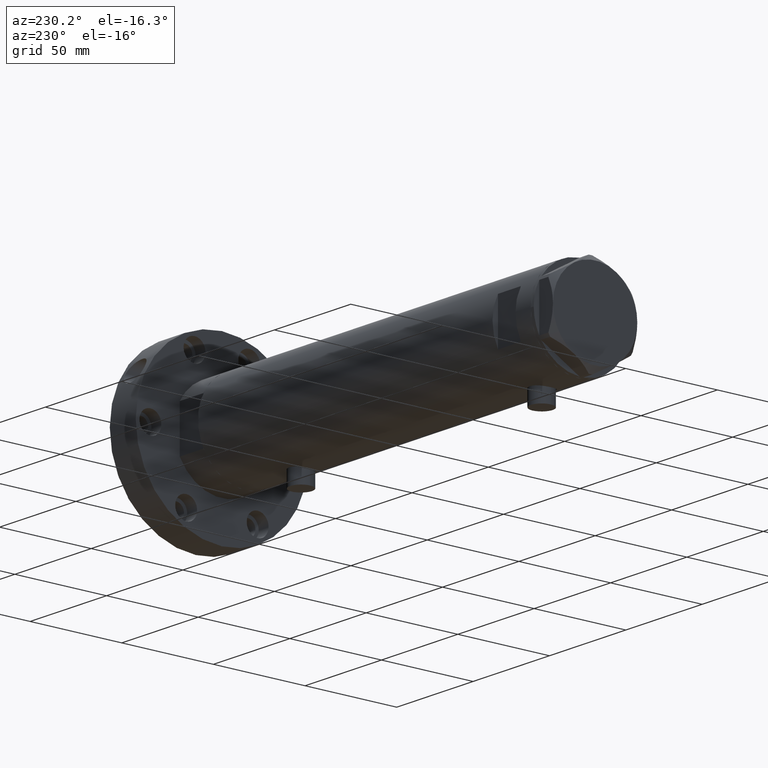
[diagram: clean part render]
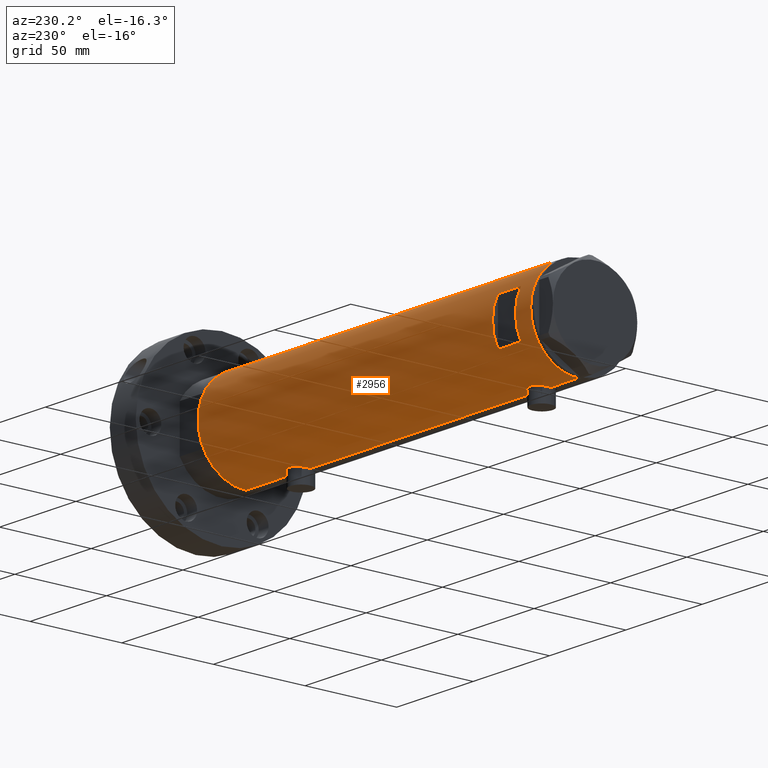
[diagram: same view with one face highlighted and labeled with its STEP entity id]
A machine part, auxiliary view. The second image highlights one B-rep face of the part: STEP entity #2956.
In plain terms, the highlighted cylindrical surface (partial cylindrical patch) has radius 26 mm, axis along (-1, -0, 0).
Its self-contained STEP definition (entity closure, byte-faithful):
#16 = CARTESIAN_POINT ( 'NONE',  ( 26.00000000000000355, 0.4983968644076023913, -77.25000000000000000 ) ) ;
#27 = ORIENTED_EDGE ( 'NONE', *, *, #5753, .T. ) ;
#31 = CARTESIAN_POINT ( 'NONE',  ( -25.92432690655987315, 2.018143994254077978, 79.02070577177285315 ) ) ;
#37 = AXIS2_PLACEMENT_3D ( 'NONE', #3273, #5276, #395 ) ;
#62 = CARTESIAN_POINT ( 'NONE',  ( -25.38675822915647728, 5.615881323213574028, 87.72306781662007324 ) ) ;
#111 = CARTESIAN_POINT ( 'NONE',  ( 24.90976107960112529, 7.450765568638834324, -68.76117130648536602 ) ) ;
#122 = DIRECTION ( 'NONE',  ( 0.000000000000000000, 0.000000000000000000, 1.000000000000000000 ) ) ;
#151 = CARTESIAN_POINT ( 'NONE',  ( -25.24766879991037172, 6.209837761082654062, 85.76849569029695886 ) ) ;
#203 = CARTESIAN_POINT ( 'NONE',  ( 0.000000000000000000, 0.000000000000000000, -108.9500000000000028 ) ) ;
#252 = CARTESIAN_POINT ( 'NONE',  ( 25.41763780493359803, 5.474943943663465262, 94.58176313788933953 ) ) ;
#279 = CARTESIAN_POINT ( 'NONE',  ( 25.31017500740585291, 5.951503630041879767, 94.02049592637402498 ) ) ;
#313 = CARTESIAN_POINT ( 'NONE',  ( -25.52275868012767646, 4.960454986366444885, -76.45761629406632665 ) ) ;
#319 = CARTESIAN_POINT ( 'NONE',  ( 26.00000000000000355, 1.142179864233347086E-15, 81.94999999999998863 ) ) ;
#345 = CARTESIAN_POINT ( 'NONE',  ( -25.45277932469920756, 5.307477387851102790, -75.95672800165310434 ) ) ;
#352 = CARTESIAN_POINT ( 'NONE',  ( 25.11254978876589661, 6.737777305585169962, 86.11974648253587361 ) ) ;
#387 = CARTESIAN_POINT ( 'NONE',  ( -25.90661719257679607, 2.209805098346973029, 90.79988745781523107 ) ) ;
#395 = DIRECTION ( 'NONE',  ( 1.000000000000000000, 0.000000000000000000, 0.000000000000000000 ) ) ;
#424 = CARTESIAN_POINT ( 'NONE',  ( 26.00000000000000355, -3.975030973907779525E-20, 96.95000000000000284 ) ) ;
#451 = CARTESIAN_POINT ( 'NONE',  ( 0.000000000000000000, 0.000000000000000000, 83.95000000000011653 ) ) ;
#452 = CARTESIAN_POINT ( 'NONE',  ( -26.00000000000000355, 3.184081677783118585E-15, -108.9500000000000028 ) ) ;
#485 = CARTESIAN_POINT ( 'NONE',  ( 25.93077501166307641, 1.957027822413552220, -62.49302141437592439 ) ) ;
#520 = CARTESIAN_POINT ( 'NONE',  ( 26.00000000000000355, 3.155021778966484351E-16, -77.25000000000001421 ) ) ;
#548 = CARTESIAN_POINT ( 'NONE',  ( 25.01140519645288407, 7.101774040639634578, -72.17392235700825154 ) ) ;
#560 = CARTESIAN_POINT ( 'NONE',  ( -25.33346170681504361, 5.849967696906721137, -70.44052947900497941 ) ) ;
#563 = CARTESIAN_POINT ( 'NONE',  ( -25.98057228346869607, 1.024901789261878138, 78.78119414145170651 ) ) ;
#626 = ORIENTED_EDGE ( 'NONE', *, *, #5326, .T. ) ;
#652 = CARTESIAN_POINT ( 'NONE',  ( 0.000000000000000000, 0.000000000000000000, 108.9500000000000028 ) ) ;
#690 = EDGE_LOOP ( 'NONE', ( #1686, #27, #6451, #626, #3200, #3333, #832, #1265, #3426, #1356, #1170, #5843 ) ) ;
#702 = CARTESIAN_POINT ( 'NONE',  ( 26.00000000000001066, 0.2455784580650491045, -62.25000000000000000 ) ) ;
#754 = CARTESIAN_POINT ( 'NONE',  ( 24.90951684770588059, 7.451587374037549338, 88.46604395478804861 ) ) ;
#776 = ORIENTED_EDGE ( 'NONE', *, *, #1470, .F. ) ;
#814 = CARTESIAN_POINT ( 'NONE',  ( -25.23757896588369931, 6.250168635417630014, -73.05675308410499724 ) ) ;
#819 = CARTESIAN_POINT ( 'NONE',  ( 25.97197502027376714, 1.230965554787594840, 96.85240824498376355 ) ) ;
#832 = ORIENTED_EDGE ( 'NONE', *, *, #4372, .F. ) ;
#855 = CARTESIAN_POINT ( 'NONE',  ( 25.03487248886523275, 7.018875226450804306, 86.79576782607934149 ) ) ;
#878 = LINE ( 'NONE', #4002, #4936 ) ;
#889 = CARTESIAN_POINT ( 'NONE',  ( 25.11550258961939619, 6.725017566862045548, 92.77928477806018748 ) ) ;
#908 = CARTESIAN_POINT ( 'NONE',  ( 26.00000000000000355, 0.000000000000000000, -108.9500000000000028 ) ) ;
#912 = CARTESIAN_POINT ( 'NONE',  ( -25.49884629689153215, 5.081547904122039938, -76.29439805696090104 ) ) ;
#1011 = CARTESIAN_POINT ( 'NONE',  ( -25.67095236150574067, 4.133649689219787149, -67.94464771725739638 ) ) ;
#1040 = CARTESIAN_POINT ( 'NONE',  ( 25.38132706741445688, 5.649034551923791447, -74.70731952814048782 ) ) ;
#1042 = CARTESIAN_POINT ( 'NONE',  ( 26.00000000000000355, 1.142179864233347086E-15, 81.94999999999998863 ) ) ;
#1049 = VECTOR ( 'NONE', #5779, 1000.000000000000000 ) ;
#1076 = CARTESIAN_POINT ( 'NONE',  ( -26.00000000000000355, 3.184081677783118585E-15, -108.9500000000000028 ) ) ;
#1106 = CARTESIAN_POINT ( 'NONE',  ( 25.30960479024496834, 5.958491152160531712, -74.33139677679966439 ) ) ;
#1122 = CARTESIAN_POINT ( 'NONE',  ( -26.00000000000000355, 1.227111019500118713E-15, 91.20000000000000284 ) ) ;
#1161 = VERTEX_POINT ( 'NONE', #1042 ) ;
#1170 = ORIENTED_EDGE ( 'NONE', *, *, #2804, .F. ) ;
#1192 = CIRCLE ( 'NONE', #37, 26.00000000000000355 ) ;
#1211 = CARTESIAN_POINT ( 'NONE',  ( 12.12435565298213724, 23.00000000000000355, 83.95000000000003126 ) ) ;
#1265 = ORIENTED_EDGE ( 'NONE', *, *, #2619, .F. ) ;
#1283 = CARTESIAN_POINT ( 'NONE',  ( 25.99652140603930306, 0.4914164889130540614, 96.93796820480460497 ) ) ;
#1332 = CARTESIAN_POINT ( 'NONE',  ( 26.00000000000000355, 0.000000000000000000, -108.9500000000000028 ) ) ;
#1351 = CARTESIAN_POINT ( 'NONE',  ( 24.95233689475078975, 7.306396477445192161, 87.73896186853338008 ) ) ;
#1356 = ORIENTED_EDGE ( 'NONE', *, *, #4396, .F. ) ;
#1381 = CARTESIAN_POINT ( 'NONE',  ( -26.00000000000000355, 1.227111019500118713E-15, -66.40000000000000568 ) ) ;
#1382 = CARTESIAN_POINT ( 'NONE',  ( 26.00000000000000000, 0.4983968644076025023, 81.95000000000000284 ) ) ;
#1386 = CARTESIAN_POINT ( 'NONE',  ( -25.99009688862344092, 0.8219492608955324409, 91.15915939226573528 ) ) ;
#1422 = CARTESIAN_POINT ( 'NONE',  ( -25.52242378584899640, 4.965907353613394193, 88.76719602921738783 ) ) ;
#1439 = EDGE_CURVE ( 'NONE', #3480, #4966, #5121, .T. ) ;
#1440 = CARTESIAN_POINT ( 'NONE',  ( -25.38875076695533650, 5.605452563035129288, -75.42185900824102873 ) ) ;
#1462 = AXIS2_PLACEMENT_3D ( 'NONE', #451, #1845, #3805 ) ;
#1470 = EDGE_CURVE ( 'NONE', #1955, #1557, #5956, .T. ) ;
#1537 = CARTESIAN_POINT ( 'NONE',  ( 25.63006864069251378, 4.375159448492150105, -75.84654411758884862 ) ) ;
#1540 = CARTESIAN_POINT ( 'NONE',  ( -25.92257874449351718, 2.014648337067152184, -66.73003581636324100 ) ) ;
#1557 = VERTEX_POINT ( 'NONE', #2065 ) ;
#1572 = CARTESIAN_POINT ( 'NONE',  ( 25.89067367629246164, 2.424883365422559223, -62.63594795494831402 ) ) ;
#1584 = CARTESIAN_POINT ( 'NONE',  ( -25.36894112891957320, 5.694149517195235433, 82.36517494801691441 ) ) ;
#1587 = CARTESIAN_POINT ( 'NONE',  ( 26.00000000000000355, 0.000000000000000000, -108.9500000000000028 ) ) ;
#1601 = CARTESIAN_POINT ( 'NONE',  ( 25.11550258961939264, 6.725017566862044660, -66.42071522193982958 ) ) ;
#1614 = CARTESIAN_POINT ( 'NONE',  ( -25.67176285215957776, 4.128807479817784731, 80.24008401548879021 ) ) ;
#1632 = CARTESIAN_POINT ( 'NONE',  ( 24.89471231507667071, 7.500219916954801391, -69.26121773116975078 ) ) ;
#1686 = ORIENTED_EDGE ( 'NONE', *, *, #5888, .T. ) ;
#1745 = CARTESIAN_POINT ( 'NONE',  ( 25.93077501166307997, 1.957027822413550000, 96.70697858562412819 ) ) ;
#1775 = CARTESIAN_POINT ( 'NONE',  ( 25.27545867390324474, 6.096774941222101951, 93.82477406957971766 ) ) ;
#1816 = LINE ( 'NONE', #5714, #1049 ) ;
#1845 = DIRECTION ( 'NONE',  ( 0.000000000000000000, 4.625929269271486900E-15, 1.000000000000000000 ) ) ;
#1850 = CARTESIAN_POINT ( 'NONE',  ( 25.92799636947105668, 1.948138538329400093, 82.20322312211784777 ) ) ;
#1878 = CARTESIAN_POINT ( 'NONE',  ( -25.98789693408478740, 0.8193301824842001979, -78.84948980265349405 ) ) ;
#1887 = CARTESIAN_POINT ( 'NONE',  ( 24.96662810169870284, 7.257932614256881187, 91.40297309526737024 ) ) ;
#1909 = CARTESIAN_POINT ( 'NONE',  ( -25.95208098418916975, 1.628413954368976846, -78.69806792170716392 ) ) ;
#1919 = CARTESIAN_POINT ( 'NONE',  ( -25.72105193281917579, 3.813738527046907745, 89.91833691099431292 ) ) ;
#1955 = VERTEX_POINT ( 'NONE', #1211 ) ;
#1989 = EDGE_CURVE ( 'NONE', #5688, #2477, #3013, .T. ) ;
#1997 = CARTESIAN_POINT ( 'NONE',  ( 25.88814720404043968, 2.420758939209245231, -76.85288286828455284 ) ) ;
#2002 = ORIENTED_EDGE ( 'NONE', *, *, #3633, .F. ) ;
#2004 = CARTESIAN_POINT ( 'NONE',  ( -25.99009688862344092, 0.8219492608955326629, -66.44084060773425904 ) ) ;
#2028 = CARTESIAN_POINT ( 'NONE',  ( 25.48882460966381203, 5.133289275481222269, -75.22343523597911030 ) ) ;
#2032 = VECTOR ( 'NONE', #3629, 1000.000000000000000 ) ;
#2034 = CARTESIAN_POINT ( 'NONE',  ( -26.00000000000001066, 0.4145874687851194285, -66.40000000000000568 ) ) ;
#2063 = CARTESIAN_POINT ( 'NONE',  ( 25.92799636947105313, 1.948138538329398539, -76.99677687788214087 ) ) ;
#2065 = CARTESIAN_POINT ( 'NONE',  ( -12.12435565298214080, 23.00000000000000355, 83.95000000000003126 ) ) ;
#2074 = CARTESIAN_POINT ( 'NONE',  ( -25.23757896588369576, 6.250168635417627350, 84.54324691589501128 ) ) ;
#2090 = CARTESIAN_POINT ( 'NONE',  ( 24.90951684770587704, 7.451587374037550227, -70.73395604521196844 ) ) ;
#2130 = CIRCLE ( 'NONE', #3657, 26.00000000000000355 ) ;
#2211 = DIRECTION ( 'NONE',  ( 1.000000000000000000, 0.000000000000000000, 0.000000000000000000 ) ) ;
#2220 = CARTESIAN_POINT ( 'NONE',  ( -26.00000000000000355, 3.184077527325983904E-15, -78.90000000000000568 ) ) ;
#2260 = CARTESIAN_POINT ( 'NONE',  ( 25.98255381630416849, 0.9836221648041321153, 96.88933098058195981 ) ) ;
#2322 = CARTESIAN_POINT ( 'NONE',  ( 25.78997056644825037, 3.329333406239041615, 96.18834808433848593 ) ) ;
#2353 = CARTESIAN_POINT ( 'NONE',  ( 25.86510134953875450, 2.654921787384018739, 82.43132938305093660 ) ) ;
#2372 = EDGE_CURVE ( 'NONE', #5688, #4213, #5926, .T. ) ;
#2374 = CARTESIAN_POINT ( 'NONE',  ( -25.85449082491265571, 2.772892880050684017, -78.26609297485326522 ) ) ;
#2378 = CARTESIAN_POINT ( 'NONE',  ( 0.000000000000000000, 0.000000000000000000, 98.95000000000001705 ) ) ;
#2379 = CARTESIAN_POINT ( 'NONE',  ( 24.89484527721567986, 7.499778575171907491, 88.95449194517063063 ) ) ;
#2384 = CARTESIAN_POINT ( 'NONE',  ( -25.85406084573621754, 2.777003695811651962, 90.56412841326093144 ) ) ;
#2404 = AXIS2_PLACEMENT_3D ( 'NONE', #2378, #3391, #2444 ) ;
#2444 = DIRECTION ( 'NONE',  ( 1.000000000000000000, -5.329070518200751394E-15, 0.000000000000000000 ) ) ;
#2464 = CARTESIAN_POINT ( 'NONE',  ( 12.12435565298214080, 23.00000000000000355, 98.95000000000001705 ) ) ;
#2469 = CARTESIAN_POINT ( 'NONE',  ( 25.97197502027376004, 1.230965554787593730, -62.34759175501625350 ) ) ;
#2477 = VERTEX_POINT ( 'NONE', #2715 ) ;
#2499 = CARTESIAN_POINT ( 'NONE',  ( 25.72923282622328500, 3.765147152416744802, -76.25485575784709624 ) ) ;
#2515 = CARTESIAN_POINT ( 'NONE',  ( -25.23766275406408965, 6.249830297096023557, 85.36191904555117560 ) ) ;
#2530 = CARTESIAN_POINT ( 'NONE',  ( 25.78922176490238627, 3.335318700939514436, -76.48550568766478364 ) ) ;
#2558 = CARTESIAN_POINT ( 'NONE',  ( 25.11254978876589306, 6.737777305585169074, -73.08025351746414344 ) ) ;
#2585 = CARTESIAN_POINT ( 'NONE',  ( 25.98569222077104257, 0.9879514382926418703, -77.20081846687564564 ) ) ;
#2597 = CARTESIAN_POINT ( 'NONE',  ( -25.45277932469920046, 5.307477387851101014, 81.64327199834687576 ) ) ;
#2619 = EDGE_CURVE ( 'NONE', #6406, #4860, #5451, .T. ) ;
#2659 = CARTESIAN_POINT ( 'NONE',  ( -25.27696731428695642, 6.089059008147561514, -71.22583693040516550 ) ) ;
#2715 = CARTESIAN_POINT ( 'NONE',  ( -26.00000000000000355, 3.184077527313362130E-15, 78.69999999999998863 ) ) ;
#2723 = CARTESIAN_POINT ( 'NONE',  ( 25.00820649268565532, 7.115348876445601434, 91.87184000475454582 ) ) ;
#2756 = EDGE_CURVE ( 'NONE', #1557, #4299, #3932, .T. ) ;
#2780 = CARTESIAN_POINT ( 'NONE',  ( -25.24784248027028966, 6.209126813737962713, -73.47268161688060673 ) ) ;
#2784 = CARTESIAN_POINT ( 'NONE',  ( 25.98569222077104968, 0.9879514382926425364, 81.99918153312438562 ) ) ;
#2804 = EDGE_CURVE ( 'NONE', #3295, #4081, #5749, .T. ) ;
#2816 = CARTESIAN_POINT ( 'NONE',  ( -25.28673619335057055, 6.048783215285170378, -74.27550990348181870 ) ) ;
#2821 = CARTESIAN_POINT ( 'NONE',  ( 25.99999999999999289, 0.2455784580650480498, 96.94999999999996021 ) ) ;
#2849 = CARTESIAN_POINT ( 'NONE',  ( -26.00000000000000355, 0.2043916521039003675, -78.90000000000000568 ) ) ;
#2856 = CARTESIAN_POINT ( 'NONE',  ( 25.17636585680005368, 6.493453152855889421, 93.21099249662803743 ) ) ;
#2878 = DIRECTION ( 'NONE',  ( 0.000000000000000000, 0.000000000000000000, 1.000000000000000000 ) ) ;
#2881 = CARTESIAN_POINT ( 'NONE',  ( -25.81206132723605862, 3.139065735901515275, -78.06978769360878800 ) ) ;
#2914 = CARTESIAN_POINT ( 'NONE',  ( -25.57167265924274702, 4.701795585128869526, -76.77276288310035568 ) ) ;
#2946 = CARTESIAN_POINT ( 'NONE',  ( 25.20855488770172315, 6.367749707222650990, -65.77997776959041687 ) ) ;
#2950 = CARTESIAN_POINT ( 'NONE',  ( -26.00000000000000355, 1.227111019500118713E-15, -66.40000000000000568 ) ) ;
#2956 = ADVANCED_FACE ( 'NONE', ( #5177, #4688 ), #6281, .T. ) ;
#2985 = CARTESIAN_POINT ( 'NONE',  ( -25.38675822915647728, 5.615881323213574028, -69.87693218337989265 ) ) ;
#3013 = B_SPLINE_CURVE_WITH_KNOTS ( 'NONE', 3,
 ( #6371, #3846, #1386, #3395, #3367, #4874, #387, #2384, #4387, #1919, #3883, #5906, #1422, #4136, #62, #4578, #6040, #5637, #5033, #151, #2515, #2074, #6069, #4076, #4109, #1584, #4042, #6100, #2597, #3580, #3606, #3550, #3033, #1614, #4609, #5122, #5606, #31, #3516, #563, #4515, #5568, #5095, #3124 ),
 .UNSPECIFIED., .F., .F.,
 ( 4, 2, 2, 2, 2, 2, 2, 2, 2, 2, 2, 2, 2, 2, 2, 2, 2, 2, 2, 2, 2, 4 ),
 ( 1.191872608207982896E-18, 0.001225774033668414415, 0.001838661050502624766, 0.002451548067336834901, 0.003677322101005254303, 0.004903096134673673272, 0.006128870168342093541, 0.007354644202010512943, 0.007967531218844704430, 0.008580418235678894182, 0.009806192269347313584, 0.01103196630301573472, 0.01225774033668415586, 0.01287062735351834561, 0.01348351437035253536, 0.01409640138718672858, 0.01470928840402092007, 0.01593506243768930131, 0.01716083647135768081, 0.01838661050502606725, 0.01899949752186025700, 0.01961238453869444676 ),
 .UNSPECIFIED. ) ;
#3017 = CARTESIAN_POINT ( 'NONE',  ( 25.08669247833291394, 6.831361936037332327, -66.64462260596206988 ) ) ;
#3020 = VECTOR ( 'NONE', #5080, 1000.000000000000000 ) ;
#3033 = CARTESIAN_POINT ( 'NONE',  ( -25.59680708126579773, 4.563450671387936808, 80.67456050020027192 ) ) ;
#3098 = DIRECTION ( 'NONE',  ( 0.000000000000000000, 0.000000000000000000, 1.000000000000000000 ) ) ;
#3121 = VECTOR ( 'NONE', #4378, 1000.000000000000000 ) ;
#3124 = CARTESIAN_POINT ( 'NONE',  ( -26.00000000000000355, 3.184077527313362130E-15, 78.69999999999998863 ) ) ;
#3200 = ORIENTED_EDGE ( 'NONE', *, *, #1989, .F. ) ;
#3222 = CARTESIAN_POINT ( 'NONE',  ( 25.63006864069250668, 4.375159448492152769, 83.35345588241116843 ) ) ;
#3258 = CARTESIAN_POINT ( 'NONE',  ( 24.90976107960112529, 7.450765568638835212, 90.43882869351465104 ) ) ;
#3273 = CARTESIAN_POINT ( 'NONE',  ( 0.000000000000000000, 0.000000000000000000, -108.9500000000000028 ) ) ;
#3291 = CARTESIAN_POINT ( 'NONE',  ( -25.36894112891956965, 5.694149517195237209, -75.23482505198309411 ) ) ;
#3295 = VERTEX_POINT ( 'NONE', #5482 ) ;
#3303 = VERTEX_POINT ( 'NONE', #2464 ) ;
#3329 = CARTESIAN_POINT ( 'NONE',  ( 25.38117076385347204, 5.641057083563605801, 94.39856579741848464 ) ) ;
#3333 = ORIENTED_EDGE ( 'NONE', *, *, #2372, .T. ) ;
#3362 = CARTESIAN_POINT ( 'NONE',  ( 24.89471231507666715, 7.500219916954801391, 89.93878226883029470 ) ) ;
#3367 = CARTESIAN_POINT ( 'NONE',  ( -25.95015815577422913, 1.621168830448742826, 90.98958570439819482 ) ) ;
#3369 = CARTESIAN_POINT ( 'NONE',  ( 26.00000000000000355, -3.975028449552882818E-20, -62.24999999999999289 ) ) ;
#3388 = CARTESIAN_POINT ( 'NONE',  ( -25.67176285215958487, 4.128807479817783843, -77.35991598451124673 ) ) ;
#3391 = DIRECTION ( 'NONE',  ( -0.000000000000000000, -0.000000000000000000, -1.000000000000000000 ) ) ;
#3395 = CARTESIAN_POINT ( 'NONE',  ( -25.96182217530153480, 1.422664245316465959, 91.03935273092393743 ) ) ;
#3411 = CARTESIAN_POINT ( 'NONE',  ( -25.92432690655987670, 2.018143994254067319, -78.57929422822714116 ) ) ;
#3426 = ORIENTED_EDGE ( 'NONE', *, *, #4456, .F. ) ;
#3439 = EDGE_CURVE ( 'NONE', #4299, #3303, #6294, .T. ) ;
#3449 = B_SPLINE_CURVE_WITH_KNOTS ( 'NONE', 3,
 ( #319, #1382, #2784, #5735, #1850, #4315, #2353, #4236, #4775, #3222, #5226, #5289, #4355, #3739, #5359, #3811, #352, #855, #4742, #6259, #1351, #754, #2379, #3362, #3258, #1887, #2723, #3773, #889, #2856, #5805, #1775, #279, #3329, #252, #5775, #4275, #6366, #2322, #5323, #1745, #819, #2260, #1283, #2821, #4869 ),
 .UNSPECIFIED., .F., .F.,
 ( 4, 2, 2, 2, 2, 2, 2, 2, 2, 2, 2, 2, 2, 2, 2, 2, 2, 2, 2, 2, 2, 2, 4 ),
 ( 1.109123384753006195E-18, 0.001473395154583141816, 0.002210092731874708279, 0.002946790309166274525, 0.004420185463749423498, 0.005156883041040996249, 0.005893580618332569000, 0.007366975772915686747, 0.008840370927498805362, 0.009577068504790344286, 0.01031376608208188494, 0.01178716123666492463, 0.01326055639124796431, 0.01473395154583100573, 0.01547064912312250649, 0.01620734670041400205, 0.01694404427770550628, 0.01768074185499700357, 0.01915413700957997734, 0.02062753216416295110, 0.02210092731874592140, 0.02283762489603740828, 0.02357432247332889169 ),
 .UNSPECIFIED. ) ;
#3468 = CARTESIAN_POINT ( 'NONE',  ( 25.72868876879095978, 3.768709330223699361, -63.24732513129934119 ) ) ;
#3480 = VERTEX_POINT ( 'NONE', #1381 ) ;
#3501 = CARTESIAN_POINT ( 'NONE',  ( 25.31017500740584580, 5.951503630041877102, -65.17950407362599208 ) ) ;
#3503 = CARTESIAN_POINT ( 'NONE',  ( -25.85406084573620689, 2.777003695811651962, -67.03587158673903446 ) ) ;
#3516 = CARTESIAN_POINT ( 'NONE',  ( -25.95208098418916975, 1.628413954368974625, 78.90193207829285882 ) ) ;
#3538 = VECTOR ( 'NONE', #5949, 1000.000000000000000 ) ;
#3550 = CARTESIAN_POINT ( 'NONE',  ( -25.57167265924275057, 4.701795585128869526, 80.82723711689963864 ) ) ;
#3566 = CARTESIAN_POINT ( 'NONE',  ( 25.94484652078418208, 1.709678645892024340, -77.05665346759174383 ) ) ;
#3580 = CARTESIAN_POINT ( 'NONE',  ( -25.49884629689154281, 5.081547904122039938, 81.30560194303910748 ) ) ;
#3606 = CARTESIAN_POINT ( 'NONE',  ( -25.52275868012768356, 4.960454986366445773, 81.14238370593368188 ) ) ;
#3629 = DIRECTION ( 'NONE',  ( 0.000000000000000000, 0.000000000000000000, 1.000000000000000000 ) ) ;
#3633 = EDGE_CURVE ( 'NONE', #3303, #1955, #1816, .T. ) ;
#3657 = AXIS2_PLACEMENT_3D ( 'NONE', #652, #3098, #5158 ) ;
#3692 = CARTESIAN_POINT ( 'NONE',  ( 25.99652140603931727, 0.4914164889130587244, -62.26203179519543340 ) ) ;
#3739 = CARTESIAN_POINT ( 'NONE',  ( 25.38132706741445688, 5.649034551923790559, 84.49268047185954345 ) ) ;
#3745 = AXIS2_PLACEMENT_3D ( 'NONE', #203, #4725, #2211 ) ;
#3773 = CARTESIAN_POINT ( 'NONE',  ( 25.08669247833291749, 6.831361936037331439, 92.55537739403790454 ) ) ;
#3805 = DIRECTION ( 'NONE',  ( 0.000000000000000000, 1.000000000000000000, -4.803849625781927035E-15 ) ) ;
#3811 = CARTESIAN_POINT ( 'NONE',  ( 25.17424625143662809, 6.506691718592108487, 85.68758373966277020 ) ) ;
#3821 = DIRECTION ( 'NONE',  ( 0.000000000000000000, 0.000000000000000000, 1.000000000000000000 ) ) ;
#3846 = CARTESIAN_POINT ( 'NONE',  ( -26.00000000000000711, 0.4145874687851191509, 91.20000000000001705 ) ) ;
#3883 = CARTESIAN_POINT ( 'NONE',  ( -25.67095236150574777, 4.133649689219788925, 89.65535228274261215 ) ) ;
#3892 = CARTESIAN_POINT ( 'NONE',  ( -26.00000000000000355, 3.184081677783118585E-15, -108.9500000000000028 ) ) ;
#3932 = LINE ( 'NONE', #4986, #3020 ) ;
#3952 = CARTESIAN_POINT ( 'NONE',  ( -26.00000000000000355, 3.184081677783118585E-15, 108.9500000000000028 ) ) ;
#3968 = CARTESIAN_POINT ( 'NONE',  ( 24.95233689475078265, 7.306396477445190385, -71.46103813146667960 ) ) ;
#3973 = CARTESIAN_POINT ( 'NONE',  ( -25.90661719257679252, 2.209805098346972585, -66.80011254218482009 ) ) ;
#4002 = CARTESIAN_POINT ( 'NONE',  ( 26.00000000000000355, 0.000000000000000000, -108.9500000000000028 ) ) ;
#4004 = CARTESIAN_POINT ( 'NONE',  ( -25.96182217530152769, 1.422664245316465736, -66.56064726907608531 ) ) ;
#4031 = CARTESIAN_POINT ( 'NONE',  ( 24.96662810169869928, 7.257932614256882076, -67.79702690473266102 ) ) ;
#4032 = LINE ( 'NONE', #4063, #2032 ) ;
#4042 = CARTESIAN_POINT ( 'NONE',  ( -25.38875076695534361, 5.605452563035131064, 82.17814099175892295 ) ) ;
#4063 = CARTESIAN_POINT ( 'NONE',  ( -26.00000000000000355, 3.184081677783118585E-15, -108.9500000000000028 ) ) ;
#4076 = CARTESIAN_POINT ( 'NONE',  ( -25.28673619335055278, 6.048783215285170378, 83.32449009651818983 ) ) ;
#4081 = VERTEX_POINT ( 'NONE', #3369 ) ;
#4095 = CARTESIAN_POINT ( 'NONE',  ( 25.41763780493360869, 5.474943943663467039, -64.61823686211067752 ) ) ;
#4109 = CARTESIAN_POINT ( 'NONE',  ( -25.31518616157687518, 5.930210831981638009, 82.93412882792975438 ) ) ;
#4136 = CARTESIAN_POINT ( 'NONE',  ( -25.42927140605242187, 5.422776733968214025, 88.08443996013284050 ) ) ;
#4213 = VERTEX_POINT ( 'NONE', #3952 ) ;
#4236 = CARTESIAN_POINT ( 'NONE',  ( 25.78922176490237916, 3.335318700939514880, 82.71449431233524763 ) ) ;
#4253 = LINE ( 'NONE', #3892, #4943 ) ;
#4275 = CARTESIAN_POINT ( 'NONE',  ( 25.59685363299822569, 4.579266302355758711, 95.40972068102654191 ) ) ;
#4299 = VERTEX_POINT ( 'NONE', #5670 ) ;
#4309 = CARTESIAN_POINT ( 'NONE',  ( -25.98057228346869607, 1.024901789261876139, -78.81880585854824517 ) ) ;
#4315 = CARTESIAN_POINT ( 'NONE',  ( 25.88814720404044323, 2.420758939209245675, 82.34711713171545000 ) ) ;
#4355 = CARTESIAN_POINT ( 'NONE',  ( 25.48882460966380847, 5.133289275481220493, 83.97656476402089254 ) ) ;
#4372 = EDGE_CURVE ( 'NONE', #4860, #4213, #2130, .T. ) ;
#4378 = DIRECTION ( 'NONE',  ( 0.000000000000000000, 0.000000000000000000, 1.000000000000000000 ) ) ;
#4387 = CARTESIAN_POINT ( 'NONE',  ( -25.81251897318926680, 3.135439098787735190, 90.37199178085172946 ) ) ;
#4396 = EDGE_CURVE ( 'NONE', #4081, #1161, #4610, .T. ) ;
#4456 = EDGE_CURVE ( 'NONE', #1161, #6406, #3449, .T. ) ;
#4468 = CARTESIAN_POINT ( 'NONE',  ( 25.52465069878074644, 4.952713637311410011, -75.38744860815259585 ) ) ;
#4472 = CARTESIAN_POINT ( 'NONE',  ( -25.72105193281917934, 3.813738527046908189, -67.68166308900568140 ) ) ;
#4515 = CARTESIAN_POINT ( 'NONE',  ( -25.98789693408479096, 0.8193301824841990877, 78.75051019734652868 ) ) ;
#4517 = VECTOR ( 'NONE', #122, 1000.000000000000000 ) ;
#4534 = CARTESIAN_POINT ( 'NONE',  ( 25.78997056644823971, 3.329333406239046056, -63.01165191566149559 ) ) ;
#4567 = CARTESIAN_POINT ( 'NONE',  ( 24.97016856345951297, 7.245430721349229941, -71.70303040919394277 ) ) ;
#4578 = CARTESIAN_POINT ( 'NONE',  ( -25.33346170681504361, 5.849967696906720249, 87.15947052099507175 ) ) ;
#4596 = CARTESIAN_POINT ( 'NONE',  ( 24.89484527721568696, 7.499778575171907491, -70.24550805482940063 ) ) ;
#4609 = CARTESIAN_POINT ( 'NONE',  ( -25.72087293759779669, 3.814831448865735997, 79.98261705172140523 ) ) ;
#4610 = LINE ( 'NONE', #1587, #4517 ) ;
#4688 = FACE_OUTER_BOUND ( 'NONE', #690, .T. ) ;
#4699 = CARTESIAN_POINT ( 'NONE',  ( 26.00000000000000355, 0.000000000000000000, 108.9500000000000028 ) ) ;
#4725 = DIRECTION ( 'NONE',  ( 0.000000000000000000, 0.000000000000000000, 1.000000000000000000 ) ) ;
#4732 = ORIENTED_EDGE ( 'NONE', *, *, #3439, .F. ) ;
#4742 = CARTESIAN_POINT ( 'NONE',  ( 25.01140519645288762, 7.101774040639633689, 87.02607764299175130 ) ) ;
#4775 = CARTESIAN_POINT ( 'NONE',  ( 25.72923282622329211, 3.765147152416750131, 82.94514424215292081 ) ) ;
#4805 = CARTESIAN_POINT ( 'NONE',  ( -25.31518616157687518, 5.930210831981638009, -74.66587117207023994 ) ) ;
#4860 = VERTEX_POINT ( 'NONE', #4699 ) ;
#4864 = CARTESIAN_POINT ( 'NONE',  ( -25.99759026373432391, 0.4091325989570675503, -78.88999890044902941 ) ) ;
#4869 = CARTESIAN_POINT ( 'NONE',  ( 26.00000000000000355, -3.975030973907779525E-20, 96.95000000000000284 ) ) ;
#4874 = CARTESIAN_POINT ( 'NONE',  ( -25.92257874449350652, 2.014648337067151296, 90.86996418363678174 ) ) ;
#4936 = VECTOR ( 'NONE', #2878, 1000.000000000000000 ) ;
#4943 = VECTOR ( 'NONE', #3821, 1000.000000000000000 ) ;
#4953 = CARTESIAN_POINT ( 'NONE',  ( 25.03487248886523275, 7.018875226450806082, -72.40423217392066135 ) ) ;
#4957 = CARTESIAN_POINT ( 'NONE',  ( -25.81251897318926325, 3.135439098787735190, -67.22800821914826486 ) ) ;
#4966 = VERTEX_POINT ( 'NONE', #2220 ) ;
#4986 = CARTESIAN_POINT ( 'NONE',  ( -12.12435565298214080, 23.00000000000000355, -108.9500000000000028 ) ) ;
#5021 = CARTESIAN_POINT ( 'NONE',  ( 25.52590365620542912, 4.955152228772157663, -64.09876272411760567 ) ) ;
#5033 = CARTESIAN_POINT ( 'NONE',  ( -25.27696731428695998, 6.089059008147561514, 86.37416306959481460 ) ) ;
#5052 = CARTESIAN_POINT ( 'NONE',  ( 25.59528664075983428, 4.573671112500307778, -75.69909503516727511 ) ) ;
#5055 = EDGE_CURVE ( 'NONE', #5912, #3295, #878, .T. ) ;
#5080 = DIRECTION ( 'NONE',  ( 0.000000000000000000, 0.000000000000000000, 1.000000000000000000 ) ) ;
#5095 = CARTESIAN_POINT ( 'NONE',  ( -26.00000000000000000, 0.2043916521039007284, 78.69999999999998863 ) ) ;
#5106 = ORIENTED_EDGE ( 'NONE', *, *, #2756, .F. ) ;
#5121 = B_SPLINE_CURVE_WITH_KNOTS ( 'NONE', 3,
 ( #2950, #2034, #2004, #4004, #6028, #1540, #3973, #3503, #4957, #4472, #1011, #6488, #5989, #5495, #2985, #560, #5605, #6255, #2659, #5700, #5392, #814, #2780, #2816, #4805, #3291, #1440, #5925, #345, #912, #313, #2914, #5897, #3388, #5863, #2881, #2374, #3411, #1909, #4309, #1878, #4864, #2849, #6457 ),
 .UNSPECIFIED., .F., .F.,
 ( 4, 2, 2, 2, 2, 2, 2, 2, 2, 2, 2, 2, 2, 2, 2, 2, 2, 2, 2, 2, 2, 4 ),
 ( 1.191872608207982896E-18, 0.001225774033668401188, 0.001838661050502596794, 0.002451548067336792400, 0.003677322101005198792, 0.004903096134673604750, 0.006128870168342011142, 0.007354644202010417534, 0.007967531218844622898, 0.008580418235678826527, 0.009806192269347190418, 0.01103196630301555604, 0.01225774033668391994, 0.01287062735351812356, 0.01348351437035232546, 0.01409640138718652735, 0.01470928840402073098, 0.01593506243768915906, 0.01716083647135759060, 0.01838661050502601868, 0.01899949752186023619, 0.01961238453869445023 ),
 .UNSPECIFIED. ) ;
#5122 = CARTESIAN_POINT ( 'NONE',  ( -25.81206132723604796, 3.139065735901513055, 79.53021230639120631 ) ) ;
#5158 = DIRECTION ( 'NONE',  ( 1.000000000000000000, 0.000000000000000000, 0.000000000000000000 ) ) ;
#5177 = FACE_BOUND ( 'NONE', #5722, .T. ) ;
#5226 = CARTESIAN_POINT ( 'NONE',  ( 25.59528664075983428, 4.573671112500310443, 83.50090496483274194 ) ) ;
#5266 = VERTEX_POINT ( 'NONE', #1076 ) ;
#5276 = DIRECTION ( 'NONE',  ( 0.000000000000000000, 0.000000000000000000, 1.000000000000000000 ) ) ;
#5289 = CARTESIAN_POINT ( 'NONE',  ( 25.52465069878074644, 4.952713637311411787, 83.81255139184743541 ) ) ;
#5323 = CARTESIAN_POINT ( 'NONE',  ( 25.89067367629247229, 2.424883365422557002, 96.56405204505172435 ) ) ;
#5326 = EDGE_CURVE ( 'NONE', #3480, #2477, #4032, .T. ) ;
#5359 = CARTESIAN_POINT ( 'NONE',  ( 25.30960479024496479, 5.958491152160530824, 84.86860322320038108 ) ) ;
#5392 = CARTESIAN_POINT ( 'NONE',  ( -25.23766275406408965, 6.249830297096023557, -72.23808095444880450 ) ) ;
#5451 = LINE ( 'NONE', #908, #3538 ) ;
#5482 = CARTESIAN_POINT ( 'NONE',  ( 26.00000000000000355, 3.155021778966484351E-16, -77.25000000000001421 ) ) ;
#5489 = CARTESIAN_POINT ( 'NONE',  ( 25.17636585680005368, 6.493453152855892085, -65.98900750337199383 ) ) ;
#5495 = CARTESIAN_POINT ( 'NONE',  ( -25.42927140605242542, 5.422776733968215801, -69.51556003986718224 ) ) ;
#5518 = CARTESIAN_POINT ( 'NONE',  ( 25.38117076385347559, 5.641057083563609353, -64.80143420258154663 ) ) ;
#5554 = CARTESIAN_POINT ( 'NONE',  ( 25.17424625143662098, 6.506691718592107598, -73.51241626033730370 ) ) ;
#5568 = CARTESIAN_POINT ( 'NONE',  ( -25.99759026373432391, 0.4091325989570679389, 78.71000109955099333 ) ) ;
#5591 = CARTESIAN_POINT ( 'NONE',  ( 25.86510134953875450, 2.654921787384016518, -76.76867061694905203 ) ) ;
#5605 = CARTESIAN_POINT ( 'NONE',  ( -25.31738333113900907, 5.918941409682878074, -70.63242077527678475 ) ) ;
#5606 = CARTESIAN_POINT ( 'NONE',  ( -25.85449082491264150, 2.772892880050696007, 79.33390702514675752 ) ) ;
#5637 = CARTESIAN_POINT ( 'NONE',  ( -25.28915991580760192, 6.038390257328910771, 86.57552651146907863 ) ) ;
#5670 = CARTESIAN_POINT ( 'NONE',  ( -12.12435565298214080, 23.00000000000000355, 98.95000000000001705 ) ) ;
#5688 = VERTEX_POINT ( 'NONE', #1122 ) ;
#5700 = CARTESIAN_POINT ( 'NONE',  ( -25.24766879991036816, 6.209837761082653174, -71.83150430970304967 ) ) ;
#5714 = CARTESIAN_POINT ( 'NONE',  ( 12.12435565298214080, 23.00000000000000355, -108.9500000000000028 ) ) ;
#5722 = EDGE_LOOP ( 'NONE', ( #5106, #776, #2002, #4732 ) ) ;
#5735 = CARTESIAN_POINT ( 'NONE',  ( 25.94484652078419273, 1.709678645892025228, 82.14334653240821638 ) ) ;
#5749 = B_SPLINE_CURVE_WITH_KNOTS ( 'NONE', 3,
 ( #520, #16, #2585, #3566, #2063, #1997, #5591, #2530, #2499, #1537, #5052, #4468, #2028, #1040, #1106, #5554, #2558, #4953, #548, #4567, #3968, #2090, #4596, #1632, #111, #4031, #6022, #3017, #1601, #5489, #2946, #6056, #3501, #5518, #4095, #5021, #6123, #3468, #4534, #1572, #485, #2469, #6484, #3692, #702, #6153 ),
 .UNSPECIFIED., .F., .F.,
 ( 4, 2, 2, 2, 2, 2, 2, 2, 2, 2, 2, 2, 2, 2, 2, 2, 2, 2, 2, 2, 2, 2, 4 ),
 ( 3.063710492572517602E-19, 0.001473395154583137480, 0.002210092731874702641, 0.002946790309166267153, 0.004420185463749410487, 0.005156883041040983238, 0.005893580618332555990, 0.007366975772915672870, 0.008840370927498791484, 0.009577068504790330408, 0.01031376608208186933, 0.01178716123666491075, 0.01326055639124795044, 0.01473395154583099012, 0.01547064912312249088, 0.01620734670041399164, 0.01694404427770549240, 0.01768074185499699316, 0.01915413700957996693, 0.02062753216416294069, 0.02210092731874591793, 0.02283762489603740134, 0.02357432247332888822 ),
 .UNSPECIFIED. ) ;
#5753 = EDGE_CURVE ( 'NONE', #5266, #4966, #4253, .T. ) ;
#5775 = CARTESIAN_POINT ( 'NONE',  ( 25.52590365620542912, 4.955152228772157663, 95.10123727588242559 ) ) ;
#5779 = DIRECTION ( 'NONE',  ( -0.000000000000000000, -0.000000000000000000, -1.000000000000000000 ) ) ;
#5805 = CARTESIAN_POINT ( 'NONE',  ( 25.20855488770171604, 6.367749707222649214, 93.42002223040957176 ) ) ;
#5843 = ORIENTED_EDGE ( 'NONE', *, *, #5055, .F. ) ;
#5863 = CARTESIAN_POINT ( 'NONE',  ( -25.72087293759780380, 3.814831448865738661, -77.61738294827860329 ) ) ;
#5888 = EDGE_CURVE ( 'NONE', #5912, #5266, #1192, .T. ) ;
#5897 = CARTESIAN_POINT ( 'NONE',  ( -25.59680708126579773, 4.563450671387937696, -76.92543949979970819 ) ) ;
#5906 = CARTESIAN_POINT ( 'NONE',  ( -25.57189498399054983, 4.707763994471525493, 89.08090281055548587 ) ) ;
#5912 = VERTEX_POINT ( 'NONE', #1332 ) ;
#5925 = CARTESIAN_POINT ( 'NONE',  ( -25.43062364804611875, 5.412314182902751014, -75.78227648580933362 ) ) ;
#5926 = LINE ( 'NONE', #452, #3121 ) ;
#5949 = DIRECTION ( 'NONE',  ( 0.000000000000000000, 0.000000000000000000, 1.000000000000000000 ) ) ;
#5956 = CIRCLE ( 'NONE', #1462, 26.00000000000000355 ) ;
#5989 = CARTESIAN_POINT ( 'NONE',  ( -25.52242378584899640, 4.965907353613394193, -68.83280397078264912 ) ) ;
#6022 = CARTESIAN_POINT ( 'NONE',  ( 25.00820649268564466, 7.115348876445598769, -67.32815999524548545 ) ) ;
#6028 = CARTESIAN_POINT ( 'NONE',  ( -25.95015815577422558, 1.621168830448743048, -66.61041429560181371 ) ) ;
#6040 = CARTESIAN_POINT ( 'NONE',  ( -25.31738333113901263, 5.918941409682878074, 86.96757922472318114 ) ) ;
#6056 = CARTESIAN_POINT ( 'NONE',  ( 25.27545867390323764, 6.096774941222101063, -65.37522593042032781 ) ) ;
#6069 = CARTESIAN_POINT ( 'NONE',  ( -25.24784248027028966, 6.209126813737962713, 84.12731838311941601 ) ) ;
#6100 = CARTESIAN_POINT ( 'NONE',  ( -25.43062364804611875, 5.412314182902751902, 81.81772351419066069 ) ) ;
#6123 = CARTESIAN_POINT ( 'NONE',  ( 25.59685363299823280, 4.579266302355757823, -63.79027931897347514 ) ) ;
#6153 = CARTESIAN_POINT ( 'NONE',  ( 26.00000000000000355, -3.975028449552882818E-20, -62.24999999999999289 ) ) ;
#6255 = CARTESIAN_POINT ( 'NONE',  ( -25.28915991580760192, 6.038390257328910771, -71.02447348853092990 ) ) ;
#6259 = CARTESIAN_POINT ( 'NONE',  ( 24.97016856345952363, 7.245430721349229053, 87.49696959080610270 ) ) ;
#6281 = CYLINDRICAL_SURFACE ( 'NONE', #3745, 26.00000000000000355 ) ;
#6294 = CIRCLE ( 'NONE', #2404, 26.00000000000000355 ) ;
#6366 = CARTESIAN_POINT ( 'NONE',  ( 25.72868876879095978, 3.768709330223698473, 95.95267486870062612 ) ) ;
#6371 = CARTESIAN_POINT ( 'NONE',  ( -26.00000000000000355, 1.227111019500118713E-15, 91.20000000000000284 ) ) ;
#6406 = VERTEX_POINT ( 'NONE', #424 ) ;
#6451 = ORIENTED_EDGE ( 'NONE', *, *, #1439, .F. ) ;
#6457 = CARTESIAN_POINT ( 'NONE',  ( -26.00000000000000355, 3.184077527325983904E-15, -78.90000000000000568 ) ) ;
#6484 = CARTESIAN_POINT ( 'NONE',  ( 25.98255381630415073, 0.9836221648041368892, -62.31066901941806435 ) ) ;
#6488 = CARTESIAN_POINT ( 'NONE',  ( -25.57189498399055694, 4.707763994471526381, -68.51909718944453687 ) ) ;